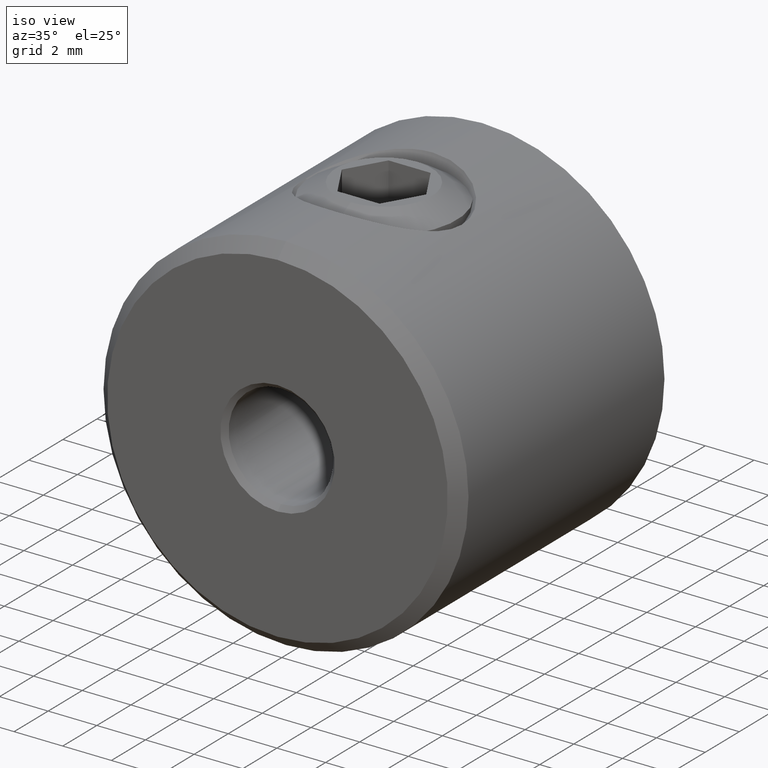
[diagram: clean part render]
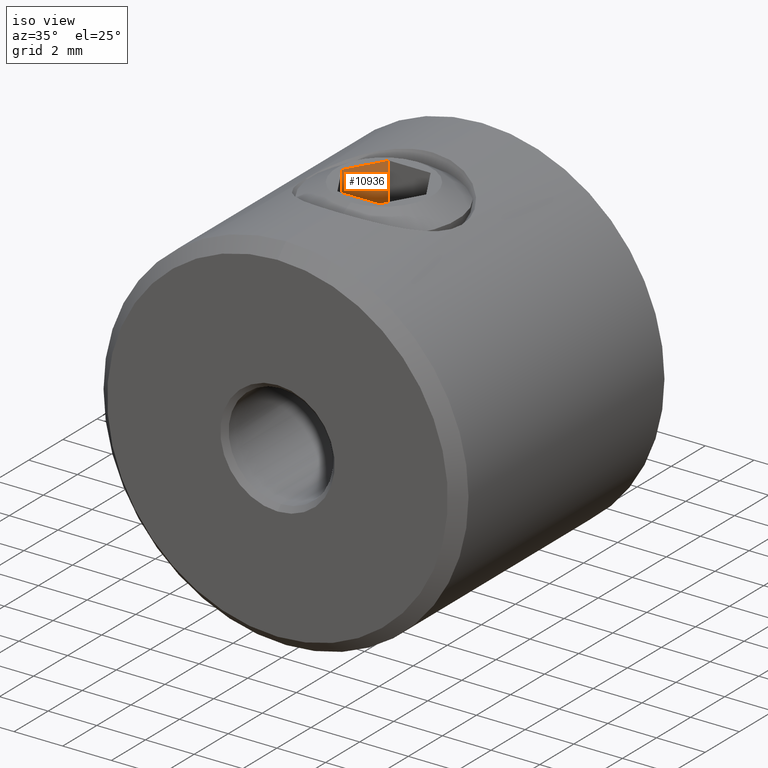
[diagram: same view with one face highlighted and labeled with its STEP entity id]
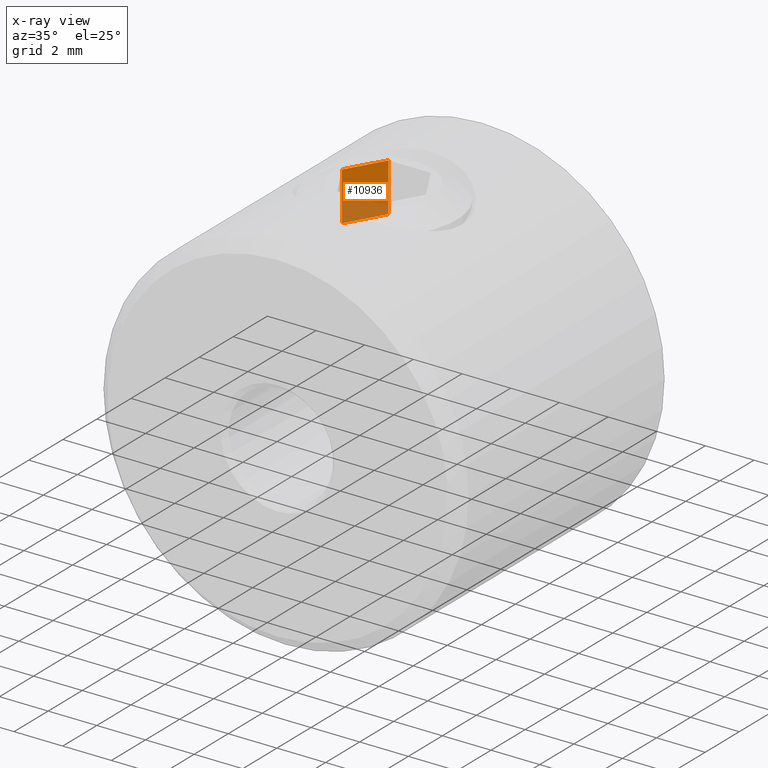
[diagram: x-ray of the same camera — body ghosted, the highlighted face saturated]
A machine part, iso view. The second image highlights one B-rep face of the part: STEP entity #10936.
The next image is the same camera in x-ray: the body ghosted, the highlighted face saturated — about 34% of this face is hidden behind the body in this view.
In plain terms, the highlighted planar face has unit normal (-0.866, 0.5, -0).
Its self-contained STEP definition (entity closure, byte-faithful):
#289 = EDGE_CURVE ( 'NONE', #9275, #3736, #9541, .T. ) ;
#335 = CARTESIAN_POINT ( 'NONE',  ( 8.000000000000000000, -0.8660254037844389300, 1.500000000000000200 ) ) ;
#591 = EDGE_LOOP ( 'NONE', ( #5750, #1454, #6129, #9810 ) ) ;
#1454 = ORIENTED_EDGE ( 'NONE', *, *, #10391, .F. ) ;
#1697 = DIRECTION ( 'NONE',  ( 1.000000000000000000, 0.0000000000000000000, 6.123031769111886300E-017 ) ) ;
#2497 = LINE ( 'NONE', #9017, #15010 ) ;
#3736 = VERTEX_POINT ( 'NONE', #4988 ) ;
#3851 = DIRECTION ( 'NONE',  ( 0.0000000000000000000, -0.5000000000000002200, -0.8660254037844386000 ) ) ;
#4126 = FACE_OUTER_BOUND ( 'NONE', #591, .T. ) ;
#4146 = DIRECTION ( 'NONE',  ( 0.0000000000000000000, -0.5000000000000001100, -0.8660254037844384900 ) ) ;
#4824 = DIRECTION ( 'NONE',  ( 1.000000000000000000, 0.0000000000000000000, 6.123031769111886300E-017 ) ) ;
#4988 = CARTESIAN_POINT ( 'NONE',  ( 6.000000000000000000, -1.732050807568877900, 2.774972326148338200E-016 ) ) ;
#5076 = EDGE_CURVE ( 'NONE', #15657, #5259, #9711, .T. ) ;
#5259 = VERTEX_POINT ( 'NONE', #5613 ) ;
#5613 = CARTESIAN_POINT ( 'NONE',  ( 8.000000000000000000, -1.732050807568877400, 4.336808689942017700E-016 ) ) ;
#5750 = ORIENTED_EDGE ( 'NONE', *, *, #5076, .T. ) ;
#6129 = ORIENTED_EDGE ( 'NONE', *, *, #289, .F. ) ;
#6334 = VECTOR ( 'NONE', #13740, 1000.000000000000200 ) ;
#8874 = AXIS2_PLACEMENT_3D ( 'NONE', #14856, #11152, #3851 ) ;
#8949 = VECTOR ( 'NONE', #4146, 1000.000000000000200 ) ;
#9017 = CARTESIAN_POINT ( 'NONE',  ( 6.000000000000000000, -0.8660254037844389300, 1.500000000000000000 ) ) ;
#9275 = VERTEX_POINT ( 'NONE', #10044 ) ;
#9482 = CARTESIAN_POINT ( 'NONE',  ( 6.000000000000000000, -1.732050807568877900, 2.774972326148338200E-016 ) ) ;
#9541 = LINE ( 'NONE', #11165, #6334 ) ;
#9711 = LINE ( 'NONE', #335, #8949 ) ;
#9810 = ORIENTED_EDGE ( 'NONE', *, *, #9964, .T. ) ;
#9964 = EDGE_CURVE ( 'NONE', #9275, #15657, #2497, .T. ) ;
#10044 = CARTESIAN_POINT ( 'NONE',  ( 6.000000000000000000, -0.8660254037844389300, 1.500000000000000000 ) ) ;
#10391 = EDGE_CURVE ( 'NONE', #3736, #5259, #11910, .T. ) ;
#10936 = ADVANCED_FACE ( 'NONE', ( #4126 ), #13269, .F. ) ;
#11152 = DIRECTION ( 'NONE',  ( -3.061515884555944400E-017, -0.8660254037844386000, 0.5000000000000002200 ) ) ;
#11165 = CARTESIAN_POINT ( 'NONE',  ( 6.000000000000000000, -0.8660254037844389300, 1.500000000000000000 ) ) ;
#11330 = VECTOR ( 'NONE', #4824, 1000.000000000000000 ) ;
#11910 = LINE ( 'NONE', #9482, #11330 ) ;
#12185 = CARTESIAN_POINT ( 'NONE',  ( 8.000000000000000000, -0.8660254037844389300, 1.500000000000000200 ) ) ;
#13269 = PLANE ( 'NONE',  #8874 ) ;
#13740 = DIRECTION ( 'NONE',  ( 0.0000000000000000000, -0.5000000000000001100, -0.8660254037844384900 ) ) ;
#14856 = CARTESIAN_POINT ( 'NONE',  ( 6.000000000000000000, -0.8660254037844389300, 1.500000000000000000 ) ) ;
#15010 = VECTOR ( 'NONE', #1697, 1000.000000000000000 ) ;
#15657 = VERTEX_POINT ( 'NONE', #12185 ) ;